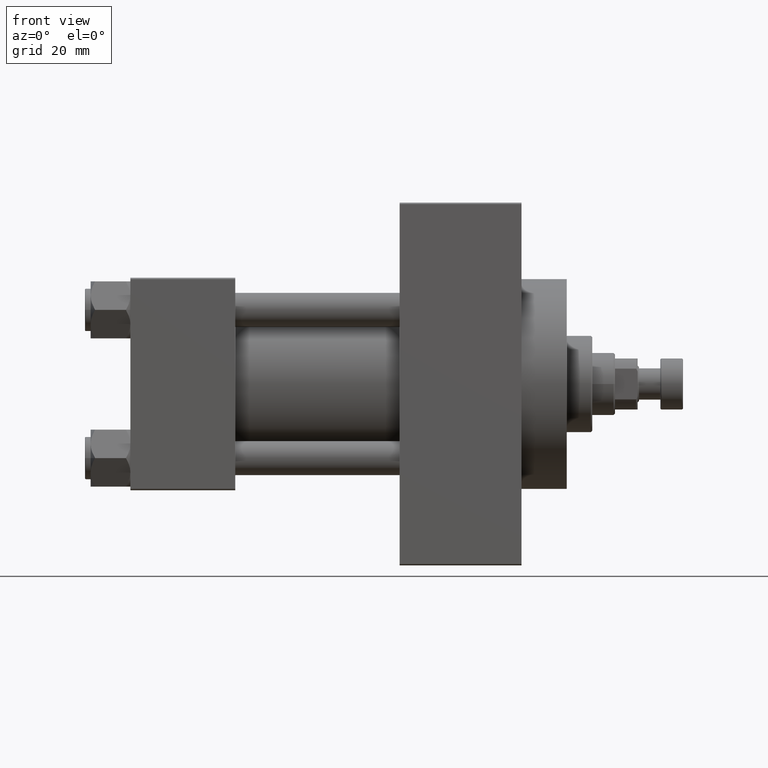
[diagram: clean part render]
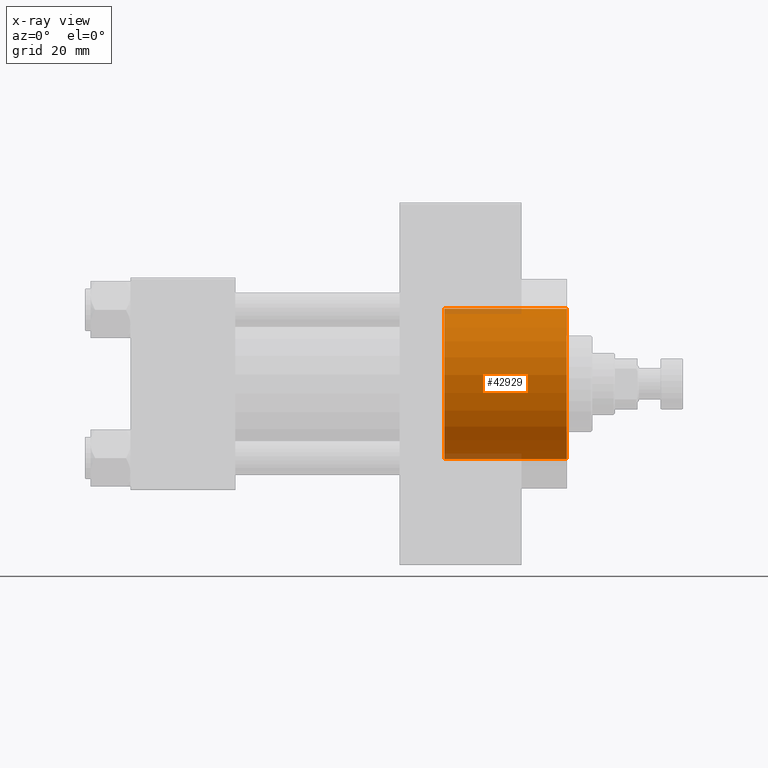
[diagram: x-ray — body ghosted, one internal face saturated and labeled with its STEP entity id]
A machine part, front view, then the same camera in x-ray: the body is ghosted and one INTERNAL B-rep face — a face not visible from any outside direction — is saturated and labeled: STEP entity #42929.
In plain terms, the highlighted cylindrical surface (partial cylindrical patch) has radius 26.5 mm, axis along (1, 0, 0).
Its self-contained STEP definition (entity closure, byte-faithful):
#652 = DIRECTION ( 'NONE',  ( 1.000000000000000000, -0.000000000000000000, -0.000000000000000000 ) ) ;
#4078 = CARTESIAN_POINT ( 'NONE',  ( 154.0000000000000284, 0.000000000000000000, 0.000000000000000000 ) ) ;
#4110 = CARTESIAN_POINT ( 'NONE',  ( 110.7400000000000375, 0.000000000000000000, 0.000000000000000000 ) ) ;
#6750 = DIRECTION ( 'NONE',  ( 1.000000000000000000, 0.000000000000000000, 0.000000000000000000 ) ) ;
#6751 = ORIENTED_EDGE ( 'NONE', *, *, #25164, .T. ) ;
#7758 = VERTEX_POINT ( 'NONE', #25162 ) ;
#8353 = CARTESIAN_POINT ( 'NONE',  ( 110.7400000000000375, 3.245314017740486554E-15, 26.50000000000000355 ) ) ;
#9740 = CARTESIAN_POINT ( 'NONE',  ( 154.0000000000000284, 3.245314017740486554E-15, 26.50000000000000355 ) ) ;
#10138 = DIRECTION ( 'NONE',  ( 1.000000000000000000, -0.000000000000000000, -0.000000000000000000 ) ) ;
#11152 = VERTEX_POINT ( 'NONE', #9740 ) ;
#11346 = CYLINDRICAL_SURFACE ( 'NONE', #16337, 26.50000000000000355 ) ;
#12727 = EDGE_CURVE ( 'NONE', #17775, #7758, #12794, .T. ) ;
#12794 = LINE ( 'NONE', #20982, #30144 ) ;
#13626 = EDGE_CURVE ( 'NONE', #16182, #17775, #45570, .T. ) ;
#16182 = VERTEX_POINT ( 'NONE', #8353 ) ;
#16337 = AXIS2_PLACEMENT_3D ( 'NONE', #4110, #33512, #44603 ) ;
#17192 = DIRECTION ( 'NONE',  ( 1.000000000000000000, 0.000000000000000000, 0.000000000000000000 ) ) ;
#17775 = VERTEX_POINT ( 'NONE', #41413 ) ;
#18613 = VECTOR ( 'NONE', #652, 1000.000000000000000 ) ;
#20186 = AXIS2_PLACEMENT_3D ( 'NONE', #31896, #17192, #28748 ) ;
#20982 = CARTESIAN_POINT ( 'NONE',  ( 110.7400000000000375, 0.000000000000000000, -26.50000000000000355 ) ) ;
#21810 = EDGE_LOOP ( 'NONE', ( #32127, #42107, #6751, #47215 ) ) ;
#22123 = LINE ( 'NONE', #26219, #18613 ) ;
#25162 = CARTESIAN_POINT ( 'NONE',  ( 154.0000000000000284, 0.000000000000000000, -26.50000000000000355 ) ) ;
#25164 = EDGE_CURVE ( 'NONE', #11152, #7758, #47052, .T. ) ;
#26219 = CARTESIAN_POINT ( 'NONE',  ( 110.7400000000000375, 3.245314017740486554E-15, 26.50000000000000355 ) ) ;
#28748 = DIRECTION ( 'NONE',  ( 0.000000000000000000, 0.000000000000000000, -1.000000000000000000 ) ) ;
#30144 = VECTOR ( 'NONE', #10138, 1000.000000000000000 ) ;
#31896 = CARTESIAN_POINT ( 'NONE',  ( 110.7400000000000375, 0.000000000000000000, 0.000000000000000000 ) ) ;
#32127 = ORIENTED_EDGE ( 'NONE', *, *, #13626, .F. ) ;
#33512 = DIRECTION ( 'NONE',  ( 1.000000000000000000, -0.000000000000000000, -0.000000000000000000 ) ) ;
#40967 = FACE_OUTER_BOUND ( 'NONE', #21810, .T. ) ;
#41413 = CARTESIAN_POINT ( 'NONE',  ( 110.7400000000000375, 0.000000000000000000, -26.50000000000000355 ) ) ;
#42107 = ORIENTED_EDGE ( 'NONE', *, *, #42366, .T. ) ;
#42366 = EDGE_CURVE ( 'NONE', #16182, #11152, #22123, .T. ) ;
#42418 = AXIS2_PLACEMENT_3D ( 'NONE', #4078, #6750, #47019 ) ;
#42929 = ADVANCED_FACE ( 'NONE', ( #40967 ), #11346, .F. ) ;
#44603 = DIRECTION ( 'NONE',  ( 0.000000000000000000, 0.000000000000000000, -1.000000000000000000 ) ) ;
#45570 = CIRCLE ( 'NONE', #20186, 26.50000000000000355 ) ;
#47019 = DIRECTION ( 'NONE',  ( 0.000000000000000000, 0.000000000000000000, -1.000000000000000000 ) ) ;
#47052 = CIRCLE ( 'NONE', #42418, 26.50000000000000355 ) ;
#47215 = ORIENTED_EDGE ( 'NONE', *, *, #12727, .F. ) ;